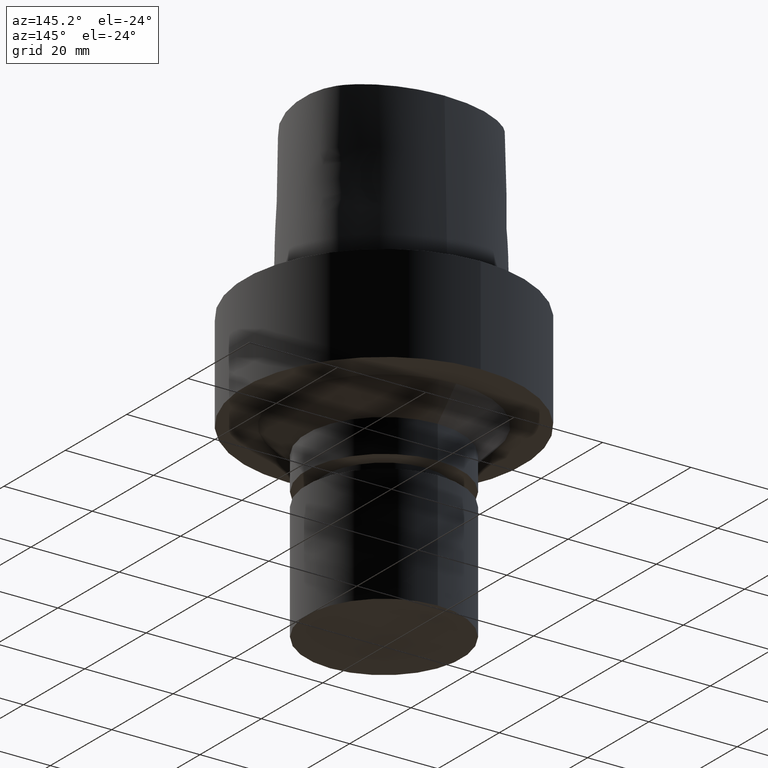
[diagram: clean part render]
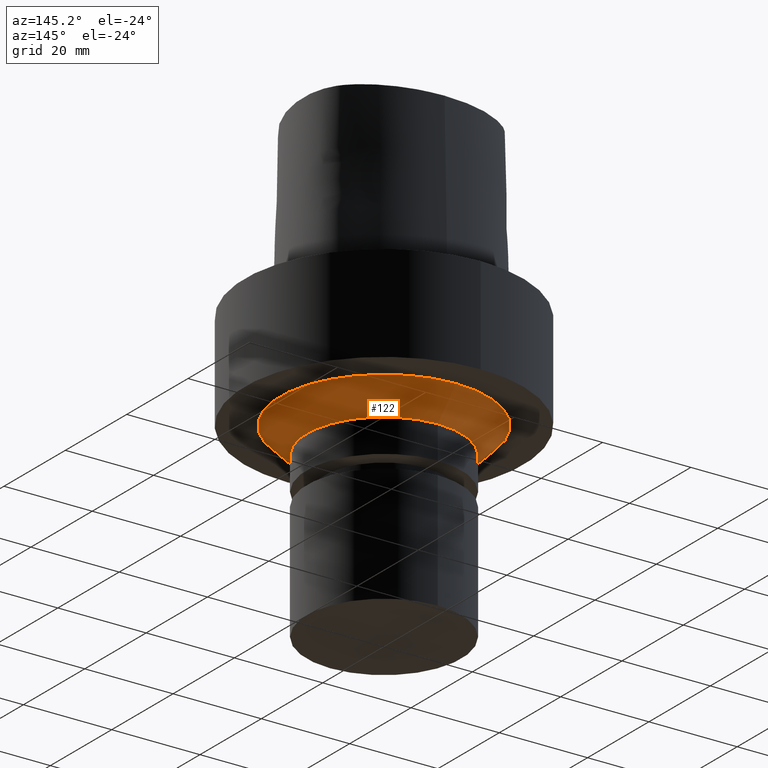
[diagram: same view with one face highlighted and labeled with its STEP entity id]
A machine part, auxiliary view. The second image highlights one B-rep face of the part: STEP entity #122.
In plain terms, the highlighted conical surface has half-angle 45 deg.
Its self-contained STEP definition (entity closure, byte-faithful):
#101=EDGE_CURVE('Unnamed[1]',#238,#238,#239,.T.);
#122=ADVANCED_FACE('Unnamed[1]',(#268,#269),#270,.T.);
#145=EDGE_CURVE('Unnamed[1]',#300,#300,#301,.T.);
#238=VERTEX_POINT('',#438);
#239=CIRCLE('',#439,23.5);
#268=FACE_BOUND('',#491,.T.);
#269=FACE_BOUND('',#492,.T.);
#270=CONICAL_SURFACE('',#493,20.5,0.785398163397451);
#300=VERTEX_POINT('',#531);
#301=CIRCLE('',#532,17.4999999999999);
#438=CARTESIAN_POINT('',(1.34711147906209E-015,23.5,-22.0));
#439=AXIS2_PLACEMENT_3D('',#785,#786,#787);
#491=EDGE_LOOP('',(#817));
#492=EDGE_LOOP('',(#818));
#493=AXIS2_PLACEMENT_3D('',#819,#820,#821);
#531=CARTESIAN_POINT('',(1.71450551880629E-015,17.4999999999999,-28.0));
#532=AXIS2_PLACEMENT_3D('',#849,#850,#851);
#785=CARTESIAN_POINT('',(1.34711147906209E-015,2.69422295812418E-015,-22.0));
#786=DIRECTION('',(6.12323399573677E-017,1.22464679914735E-016,-1.0));
#787=DIRECTION('',(-1.23259516440783E-032,1.0,1.22464679914735E-016));
#817=ORIENTED_EDGE('',*,*,#145,.F.);
#818=ORIENTED_EDGE('',*,*,#101,.T.);
#819=CARTESIAN_POINT('',(1.53080849893419E-015,3.06161699786838E-015,-25.0));
#820=DIRECTION('',(-6.12323399573677E-017,-1.22464679914735E-016,1.0));
#821=DIRECTION('',(-1.23259516440783E-032,1.0,1.22464679914735E-016));
#849=CARTESIAN_POINT('',(1.71450551880629E-015,3.42901103761259E-015,-28.0));
#850=DIRECTION('',(6.12323399573677E-017,1.22464679914735E-016,-1.0));
#851=DIRECTION('',(-1.23259516440783E-032,1.0,1.22464679914735E-016));